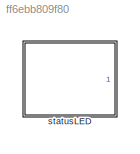
MODEL slx_ff6ebb809f80
KIND model
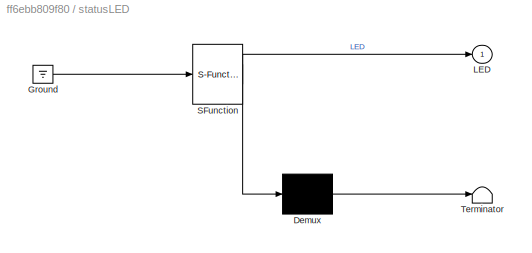
BLOCK [SubSystem] statusLED
  ErrorFcn = Stateflow.Translate.translate
  PermitHierarchicalResolution = ExplicitOnly
  Ports = [0, 1]
  RequestExecContextInheritance = off
  SFBlockType = Chart
  TreatAsAtomicUnit = on
BLOCK [Demux] statusLED/ Demux 
  Outputs = 1
  Ports = [1, 1]
BLOCK [Ground] statusLED/ Ground 
BLOCK [S-Function] statusLED/ SFunction 
  EnableBusSupport = off
  FunctionName = sf_sfun
  PortCounts = [1 2]
  Ports = [1, 2]
  Tag = Stateflow S-Function statusLED 3
BLOCK [Terminator] statusLED/ Terminator 
BLOCK [Outport] statusLED/LED
  IconDisplay = Port number
CHART statusLED states=4 transitions=6
  STATE_LABEL 'statusLED'
  STATE_LABEL 'off\nentry: LED = false;'
  STATE_LABEL 'flash\nentry: LED = true;'
  STATE_LABEL 'on\nentry: LED = true;'
  STATE_LABEL 'ON'
  STATE_LABEL 'OFF'
  STATE_LABEL 'after(300,msec) '
  STATE_LABEL 'FLASH'
  STATE_LABEL 'off\nentry: LED = false;'
  STATE_LABEL 'flash\nentry: LED = true;'
  STATE_LABEL 'on\nentry: LED = true;'
